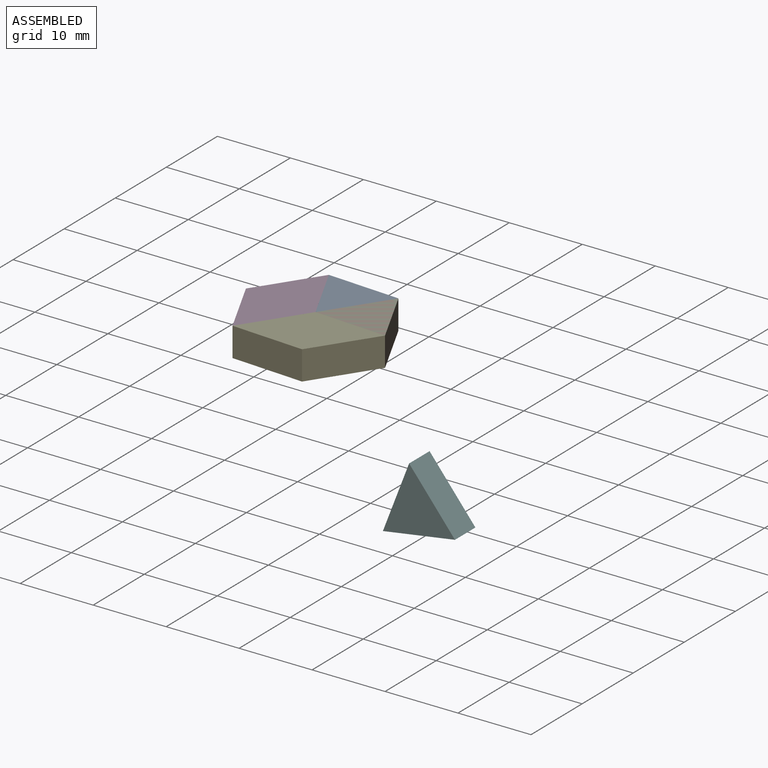
[diagram: assembled view]
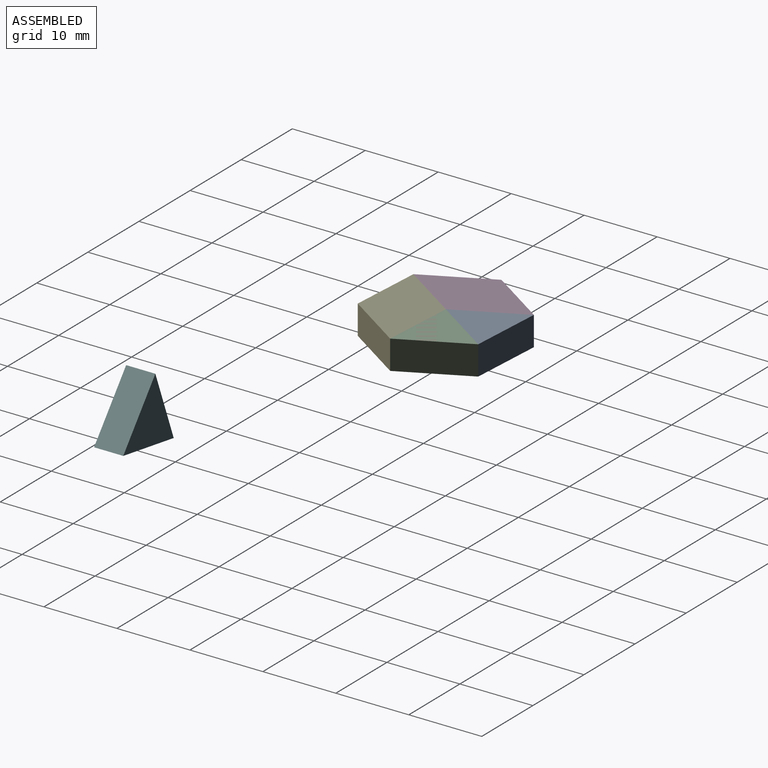
[diagram: assembled view, second angle]
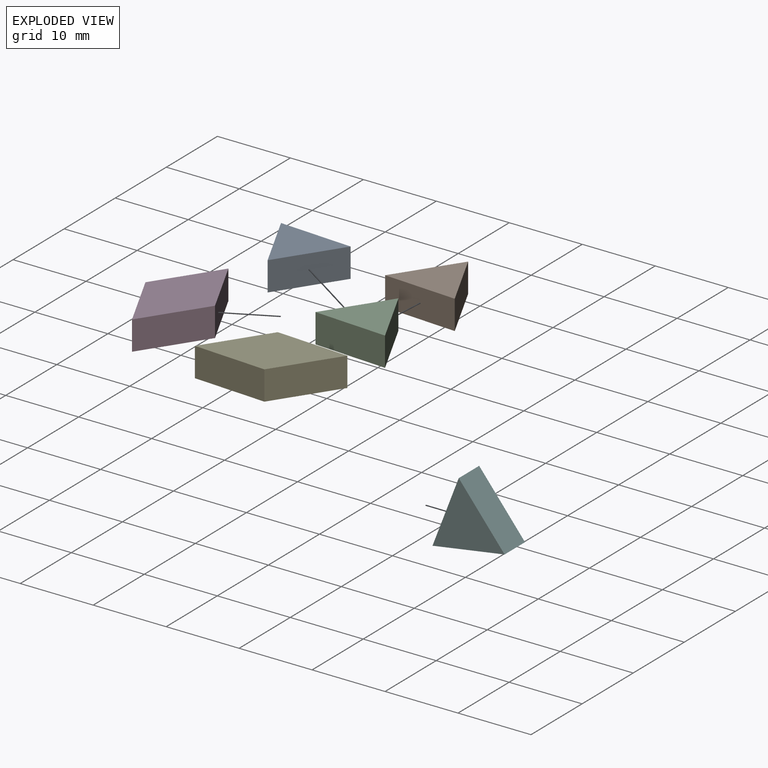
[diagram: exploded view]
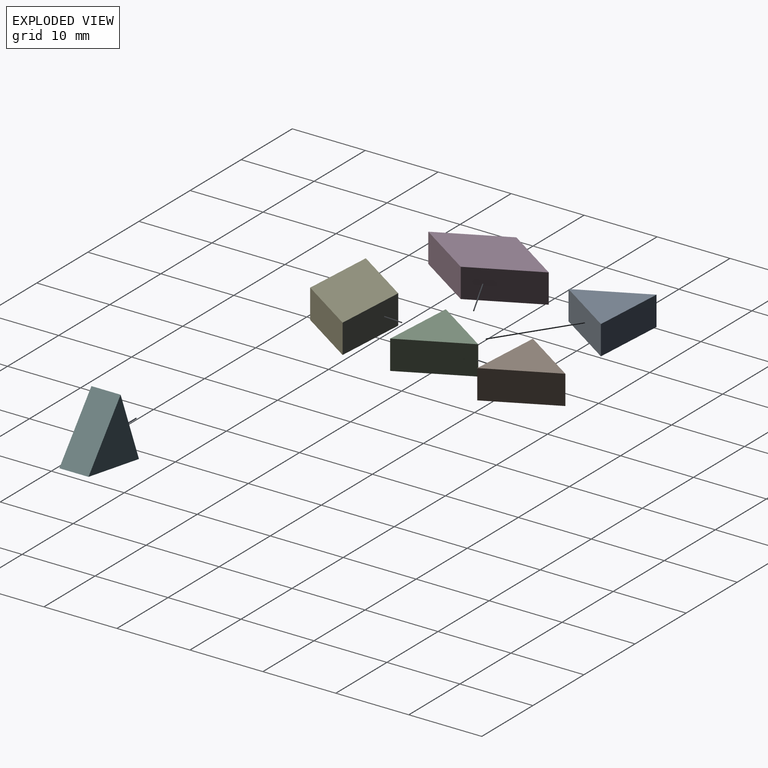
[diagram: exploded view, second angle]
ASSEMBLY  parts=6 mates=4
PART A: 5 faces, bbox 10x9x4 mm
  f0: plane 8.32x5.54mm, normal (-0.83,0.55,0), area 40mm2, adj f1,f2,f3,f4
  f1: plane 9.98x4mm, normal (-0.06,-1,0), area 40mm2, adj f0,f2,f3,f4
  f2: plane 8.96x4.44mm, normal (0.9,0.44,0), area 40mm2, adj f0,f1,f3,f4
  f3: plane 9.98x8.96mm, normal (0,0,1), area 43.3mm2, adj f0,f1,f2
  f4: plane 9.98x8.96mm, normal (0,0,-1), area 43.3mm2, adj f0,f1,f2
PART B: same geometry as A
PART C: 5 faces, bbox 9.9x4x9.3 mm
  f0: plane 7.78x6.28mm, normal (0.78,0,0.63), area 40mm2, adj f1,f2,f3,f4
  f1: plane 9.33x4mm, normal (-0.93,0,0.36), area 40mm2, adj f0,f2,f3,f4
  f2: plane 9.88x4mm, normal (0.16,0,-0.99), area 40mm2, adj f0,f1,f3,f4
  f3: plane 9.88x9.33mm, normal (0,1,0), area 43.3mm2, adj f0,f1,f2
  f4: plane 9.88x9.33mm, normal (0,-1,0), area 43.3mm2, adj f0,f1,f2
PART D: 6 faces, bbox 15x4x8.7 mm
  f0: plane 10x4mm, normal (0,0,1), area 40mm2, adj f1,f3,f4,f5
  f1: plane 8.66x5mm, normal (-0.87,0,0.5), area 40mm2, adj f0,f2,f4,f5
  f2: plane 10x4mm, normal (0,0,-1), area 40mm2, adj f1,f3,f4,f5
  f3: plane 8.66x5mm, normal (0.87,0,-0.5), area 40mm2, adj f0,f2,f4,f5
  f4: plane 15x8.66mm, normal (0,-1,0), area 86.6mm2, adj f0,f1,f2,f3
  f5: plane 15x8.66mm, normal (0,1,0), area 86.6mm2, adj f0,f1,f2,f3
PART E: same geometry as D
PART F: same geometry as C
PLACE A rot(axis=(0,0,1),60deg) t=(21.21,91.41,32.97)mm
PLACE B t=(70.41,-52.93,32.97)mm
PLACE C rot(axis=(-0.46,-0.63,0.63),130.5deg) t=(-59.54,90.79,36.97)mm
PLACE D rot(axis=(0.4,0.65,0.65),136.2deg) t=(-132.85,28.51,36.97)mm
PLACE E rot(axis=(0.35,-0.66,-0.66),141deg) t=(-97.29,-95.78,36.97)mm
PLACE F t=(53.06,-46.73,-17.94)mm
MATE fastened E.f1 <-> C.f1  axis (0.06,1,0) through (-74.2,-23.69,34.97)mm
MATE fastened C.f1 <-> B.f1  axis (-0.06,-1,0) through (-74.2,-23.69,34.97)mm
MATE fastened C.f0 <-> A.f1  axis (-0.83,0.55,0) through (-76.42,-19.21,34.97)mm
MATE fastened D.f0 <-> A.f0  axis (0.9,0.44,0) through (-81.41,-18.89,34.97)mm
